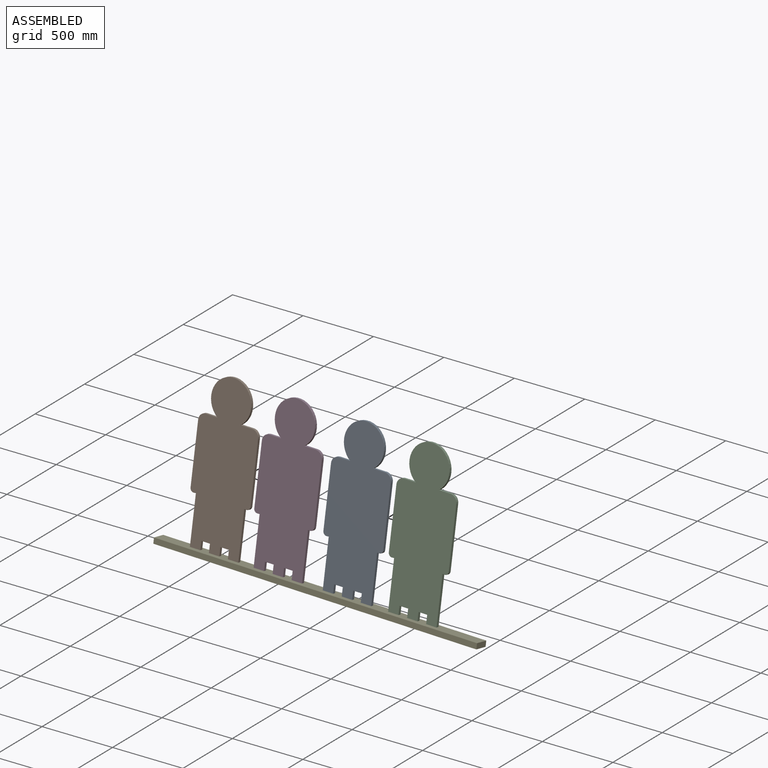
[diagram: assembled view]
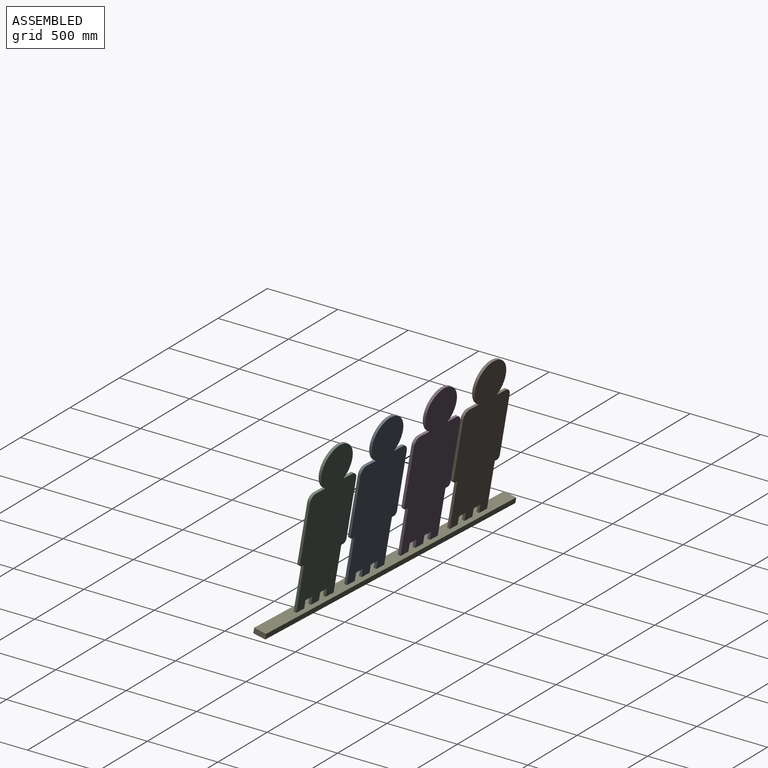
[diagram: assembled view, second angle]
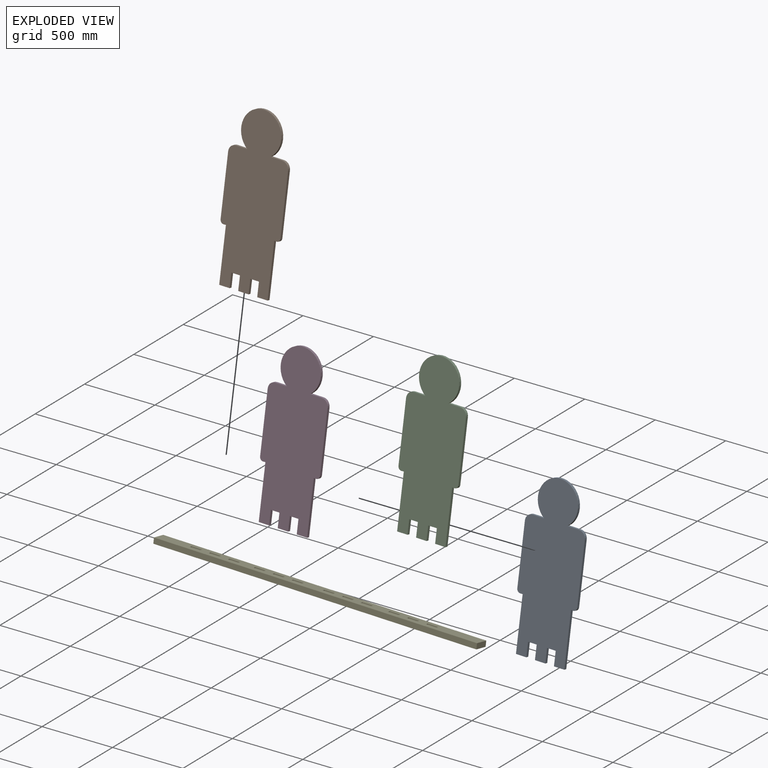
[diagram: exploded view]
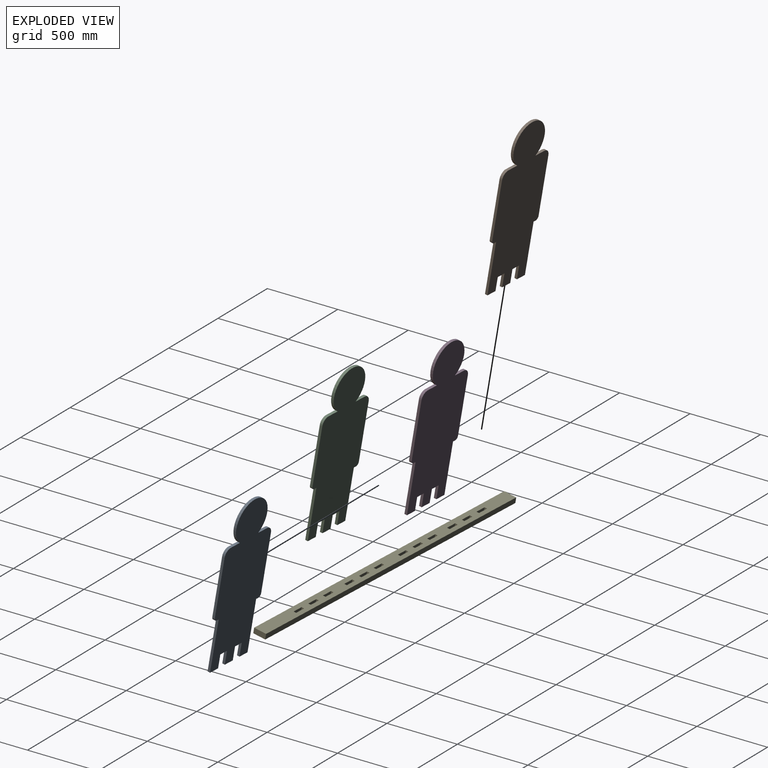
[diagram: exploded view, second angle]
ASSEMBLY  parts=5 mates=4
PART A: 24 faces, bbox 440.1x18.6x1119.8 mm
  f0: plane 415.69x18.57mm, normal (1,0,0), area 7718.2mm2, adj f1,f21,f22,f23
  f1: cylinder r=48.9mm len=48.9mm, axis (0,1,0), area 1426.3mm2, adj f0,f2,f22,f23
  f2: plane 85.16x18.57mm, normal (0,0,1), area 1581.1mm2, adj f1,f3,f22,f23
  f3: cylinder r=146.71mm len=293.43mm, axis (0,1,0), area 13703mm2, adj f2,f4,f22,f23
  f4: plane 85.16x18.57mm, normal (0,0,1), area 1581.1mm2, adj f3,f5,f22,f23
  f5: cylinder r=48.9mm len=48.9mm, axis (0,1,0), area 1426.3mm2, adj f4,f6,f22,f23
  f6: plane 415.69x18.57mm, normal (-1,0,0), area 7718.2mm2, adj f5,f7,f22,f23
  f7: cylinder r=24.45mm len=24.45mm, axis (0,1,0), area 713.2mm2, adj f6,f8,f22,f23
  f8: plane 18.57x17.82mm, normal (0.05,0,-1), area 331.3mm2, adj f7,f9,f22,f23
  f9: plane 366.09x18.57mm, normal (-1,0,0), area 6797.4mm2, adj f8,f10,f22,f23
  f10: plane 76.2x18.57mm, normal (0,0,-1), area 1414.8mm2, adj f9,f11,f22,f23
  f11: plane 95.24x18.57mm, normal (1,0,0), area 1768.3mm2, adj f10,f12,f22,f23
  f12: plane 63.5x18.57mm, normal (0,0,-1), area 1179mm2, adj f11,f13,f22,f23
  f13: plane 95.24x18.57mm, normal (-1,0,0), area 1768.3mm2, adj f12,f14,f22,f23
  f14: plane 76.2x18.57mm, normal (0,0,-1), area 1414.8mm2, adj f13,f15,f22,f23
  f15: plane 95.24x18.57mm, normal (1,0,0), area 1768.3mm2, adj f14,f16,f22,f23
  f16: plane 63.5x18.57mm, normal (0,0,-1), area 1179mm2, adj f15,f17,f22,f23
  f17: plane 95.24x18.57mm, normal (-1,0,0), area 1768.3mm2, adj f16,f18,f22,f23
  f18: plane 76.2x18.57mm, normal (0,0,-1), area 1414.8mm2, adj f17,f19,f22,f23
  f19: plane 366.09x18.57mm, normal (1,0,0), area 6797.4mm2, adj f18,f20,f22,f23
  f20: plane 18.57x17.82mm, normal (-0.05,0,-1), area 331.3mm2, adj f19,f21,f22,f23
  f21: cylinder r=24.45mm len=24.45mm, axis (0,1,0), area 713.2mm2, adj f0,f20,f22,f23
  f22: plane 1119.77x440.14mm, normal (0,-1,0), area 396061.9mm2, adj f0,f1,f2,f3,f4,f5,f6,f7
  f23: plane 1119.77x440.14mm, normal (0,1,0), area 396061.9mm2, adj f0,f1,f2,f3,f4,f5,f6,f7
PART B: same geometry as A
PART C: 24 faces, bbox 440.1x19.1x1119.8 mm
  f0: plane 415.69x19.05mm, normal (1,0,0), area 7918.8mm2, adj f1,f21,f22,f23
  f1: cylinder r=48.9mm len=48.9mm, axis (0,1,0), area 1463.4mm2, adj f0,f2,f22,f23
  f2: plane 85.16x19.05mm, normal (0,0,1), area 1622.2mm2, adj f1,f3,f22,f23
  f3: cylinder r=146.71mm len=293.43mm, axis (0,1,0), area 14059.2mm2, adj f2,f4,f22,f23
  f4: plane 85.16x19.05mm, normal (0,0,1), area 1622.2mm2, adj f3,f5,f22,f23
  f5: cylinder r=48.9mm len=48.9mm, axis (0,1,0), area 1463.4mm2, adj f4,f6,f22,f23
  f6: plane 415.69x19.05mm, normal (-1,0,0), area 7918.8mm2, adj f5,f7,f22,f23
  f7: cylinder r=24.45mm len=24.45mm, axis (0,1,0), area 731.7mm2, adj f6,f8,f22,f23
  f8: plane 19.05x17.82mm, normal (0.05,0,-1), area 339.9mm2, adj f7,f9,f22,f23
  f9: plane 366.09x19.05mm, normal (-1,0,0), area 6974.1mm2, adj f8,f10,f22,f23
  f10: plane 76.2x19.05mm, normal (0,0,-1), area 1451.6mm2, adj f9,f11,f22,f23
  f11: plane 95.24x19.05mm, normal (1,0,0), area 1814.3mm2, adj f10,f12,f22,f23
  f12: plane 63.5x19.05mm, normal (0,0,-1), area 1209.7mm2, adj f11,f13,f22,f23
  f13: plane 95.24x19.05mm, normal (-1,0,0), area 1814.3mm2, adj f12,f14,f22,f23
  f14: plane 76.2x19.05mm, normal (0,0,-1), area 1451.6mm2, adj f13,f15,f22,f23
  f15: plane 95.24x19.05mm, normal (1,0,0), area 1814.3mm2, adj f14,f16,f22,f23
  f16: plane 63.5x19.05mm, normal (0,0,-1), area 1209.7mm2, adj f15,f17,f22,f23
  f17: plane 95.24x19.05mm, normal (-1,0,0), area 1814.3mm2, adj f16,f18,f22,f23
  f18: plane 76.2x19.05mm, normal (0,0,-1), area 1451.6mm2, adj f17,f19,f22,f23
  f19: plane 366.09x19.05mm, normal (1,0,0), area 6974.1mm2, adj f18,f20,f22,f23
  f20: plane 19.05x17.82mm, normal (-0.05,0,-1), area 339.9mm2, adj f19,f21,f22,f23
  f21: cylinder r=24.45mm len=24.45mm, axis (0,1,0), area 731.7mm2, adj f0,f20,f22,f23
  f22: plane 1119.77x440.14mm, normal (0,-1,0), area 396061.9mm2, adj f0,f1,f2,f3,f4,f5,f6,f7
  f23: plane 1119.77x440.14mm, normal (0,1,0), area 396061.9mm2, adj f0,f1,f2,f3,f4,f5,f6,f7
PART D: same geometry as C
PART E: 54 faces, bbox 2374.9x38.1x88.9 mm
  f0: plane 76.2x38.1mm, normal (0,0,1), area 2903.2mm2, adj f1,f51,f52,f53
  f1: plane 38.1x18.57mm, normal (1,0,0), area 707.4mm2, adj f0,f2,f52,f53
  f2: plane 76.2x38.1mm, normal (0,0,-1), area 2903.2mm2, adj f1,f51,f52,f53
  f3: plane 38.1x18.57mm, normal (1,0,0), area 707.4mm2, adj f4,f39,f52,f53
  f4: plane 76.2x38.1mm, normal (0,0,-1), area 2903.2mm2, adj f3,f5,f52,f53
  f5: plane 38.1x18.57mm, normal (-1,0,0), area 707.4mm2, adj f4,f39,f52,f53
  f6: plane 38.1x18.57mm, normal (1,0,0), area 707.4mm2, adj f7,f40,f52,f53
  f7: plane 76.2x38.1mm, normal (0,0,-1), area 2903.2mm2, adj f6,f8,f52,f53
  f8: plane 38.1x18.57mm, normal (-1,0,0), area 707.4mm2, adj f7,f40,f52,f53
  f9: plane 38.1x18.57mm, normal (1,0,0), area 707.4mm2, adj f10,f41,f52,f53
  f10: plane 76.2x38.1mm, normal (0,0,-1), area 2903.2mm2, adj f9,f11,f52,f53
  f11: plane 38.1x18.57mm, normal (-1,0,0), area 707.4mm2, adj f10,f41,f52,f53
  f12: plane 38.1x18.57mm, normal (1,0,0), area 707.4mm2, adj f13,f42,f52,f53
  f13: plane 76.2x38.1mm, normal (0,0,-1), area 2903.2mm2, adj f12,f14,f52,f53
  f14: plane 38.1x18.57mm, normal (-1,0,0), area 707.4mm2, adj f13,f42,f52,f53
  f15: plane 38.1x18.57mm, normal (1,0,0), area 707.4mm2, adj f16,f43,f52,f53
  f16: plane 76.2x38.1mm, normal (0,0,-1), area 2903.2mm2, adj f15,f17,f52,f53
  f17: plane 38.1x18.57mm, normal (-1,0,0), area 707.4mm2, adj f16,f43,f52,f53
  f18: plane 38.1x18.57mm, normal (1,0,0), area 707.4mm2, adj f19,f44,f52,f53
  f19: plane 76.2x38.1mm, normal (0,0,-1), area 2903.2mm2, adj f18,f20,f52,f53
  f20: plane 38.1x18.57mm, normal (-1,0,0), area 707.4mm2, adj f19,f44,f52,f53
  f21: plane 38.1x18.57mm, normal (1,0,0), area 707.4mm2, adj f22,f45,f52,f53
  f22: plane 76.2x38.1mm, normal (0,0,-1), area 2903.2mm2, adj f21,f23,f52,f53
  f23: plane 38.1x18.57mm, normal (-1,0,0), area 707.4mm2, adj f22,f45,f52,f53
  f24: plane 38.1x18.57mm, normal (1,0,0), area 707.4mm2, adj f25,f46,f52,f53
  f25: plane 76.2x38.1mm, normal (0,0,-1), area 2903.2mm2, adj f24,f26,f52,f53
  f26: plane 38.1x18.57mm, normal (-1,0,0), area 707.4mm2, adj f25,f46,f52,f53
  f27: plane 38.1x18.57mm, normal (1,0,0), area 707.4mm2, adj f28,f47,f52,f53
  f28: plane 76.2x38.1mm, normal (0,0,-1), area 2903.2mm2, adj f27,f29,f52,f53
  f29: plane 38.1x18.57mm, normal (-1,0,0), area 707.4mm2, adj f28,f47,f52,f53
  f30: plane 38.1x18.57mm, normal (1,0,0), area 707.4mm2, adj f31,f48,f52,f53
  f31: plane 76.2x38.1mm, normal (0,0,-1), area 2903.2mm2, adj f30,f32,f52,f53
  f32: plane 38.1x18.57mm, normal (-1,0,0), area 707.4mm2, adj f31,f48,f52,f53
  f33: plane 38.1x18.57mm, normal (1,0,0), area 707.4mm2, adj f34,f49,f52,f53
  f34: plane 76.2x38.1mm, normal (0,0,-1), area 2903.2mm2, adj f33,f35,f52,f53
  f35: plane 38.1x18.57mm, normal (-1,0,0), area 707.4mm2, adj f34,f49,f52,f53
  f36: plane 2374.9x38.1mm, normal (0,0,1), area 90483.7mm2, adj f37,f50,f52,f53
  f37: plane 88.9x38.1mm, normal (-1,0,0), area 3387.1mm2, adj f36,f38,f52,f53
  f38: plane 2374.9x38.1mm, normal (0,0,-1), area 90483.7mm2, adj f37,f50,f52,f53
  f39: plane 76.2x38.1mm, normal (0,0,1), area 2903.2mm2, adj f3,f5,f52,f53
  f40: plane 76.2x38.1mm, normal (0,0,1), area 2903.2mm2, adj f6,f8,f52,f53
  f41: plane 76.2x38.1mm, normal (0,0,1), area 2903.2mm2, adj f9,f11,f52,f53
  f42: plane 76.2x38.1mm, normal (0,0,1), area 2903.2mm2, adj f12,f14,f52,f53
  f43: plane 76.2x38.1mm, normal (0,0,1), area 2903.2mm2, adj f15,f17,f52,f53
  f44: plane 76.2x38.1mm, normal (0,0,1), area 2903.2mm2, adj f18,f20,f52,f53
  f45: plane 76.2x38.1mm, normal (0,0,1), area 2903.2mm2, adj f21,f23,f52,f53
  f46: plane 76.2x38.1mm, normal (0,0,1), area 2903.2mm2, adj f24,f26,f52,f53
  f47: plane 76.2x38.1mm, normal (0,0,1), area 2903.2mm2, adj f27,f29,f52,f53
  f48: plane 76.2x38.1mm, normal (0,0,1), area 2903.2mm2, adj f30,f32,f52,f53
  f49: plane 76.2x38.1mm, normal (0,0,1), area 2903.2mm2, adj f33,f35,f52,f53
  f50: plane 88.9x38.1mm, normal (1,0,0), area 3387.1mm2, adj f36,f38,f52,f53
  f51: plane 38.1x18.57mm, normal (-1,0,0), area 707.4mm2, adj f0,f2,f52,f53
  f52: plane 2374.9x88.9mm, normal (0,-1,0), area 194150.6mm2, adj f0,f1,f2,f3,f4,f5,f6,f7
  f53: plane 2374.9x88.9mm, normal (0,1,0), area 194150.6mm2, adj f0,f1,f2,f3,f4,f5,f6,f7
PLACE A rot(axis=(-0.96,0.02,-0.26),10.4deg) t=(1050.59,-71.34,-45.54)mm
PLACE B rot(axis=(-0.96,0.02,-0.26),10.4deg) t=(74.97,-24.39,-45.54)mm
PLACE C rot(axis=(-0.96,0.02,-0.26),10.4deg) t=(1530.83,-93.98,-45.62)mm
PLACE D rot(axis=(-0.96,0.02,-0.26),10.4deg) t=(542.92,-46.44,-45.62)mm
PLACE E rot(axis=(1,-0.02,-0.03),80deg) t=(-203.8,-110.34,-608.43)mm
MATE fastened B.f10 <-> E.f52  axis (-0.01,-0.17,-0.98) through (-32.48,-143.52,-642.73)mm
MATE fastened A.f9 <-> E.f1  axis (1,-0.05,0) through (867.02,-186.81,-642.73)mm
MATE fastened C.f10 <-> E.f52  axis (0.01,0.17,0.98) through (1347.25,-209.92,-642.73)mm
MATE fastened D.f10 <-> E.f52  axis (0.01,0.17,0.98) through (359.34,-162.37,-642.73)mm
